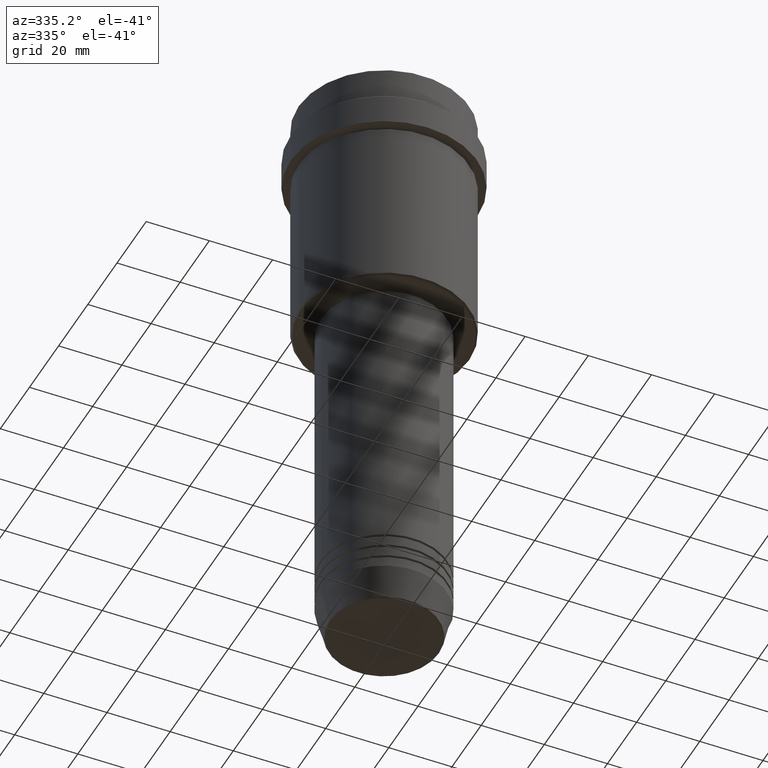
[diagram: clean part render]
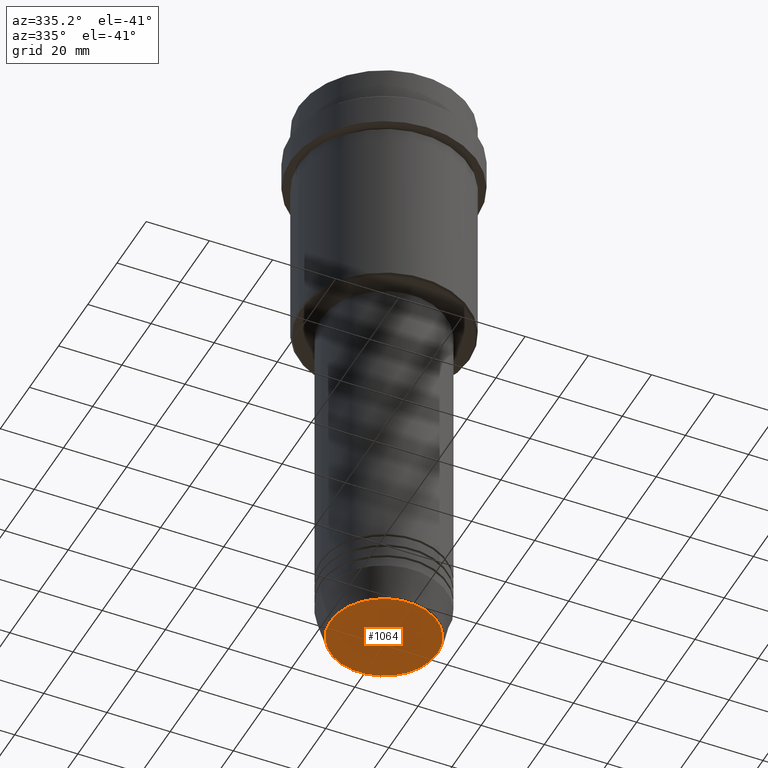
[diagram: same view with one face highlighted and labeled with its STEP entity id]
A machine part, auxiliary view. The second image highlights one B-rep face of the part: STEP entity #1064.
In plain terms, the highlighted planar face has unit normal (0, -0, 1).
Its self-contained STEP definition (entity closure, byte-faithful):
#29 = DIRECTION ( 'NONE',  ( 0.000000000000000000, 0.000000000000000000, -1.000000000000000000 ) ) ;
#42 = DIRECTION ( 'NONE',  ( 0.000000000000000000, -0.000000000000000000, 1.000000000000000000 ) ) ;
#108 = DIRECTION ( 'NONE',  ( 1.000000000000000000, 0.000000000000000000, 0.000000000000000000 ) ) ;
#224 = DIRECTION ( 'NONE',  ( 0.000000000000000000, 0.000000000000000000, -1.000000000000000000 ) ) ;
#306 = ORIENTED_EDGE ( 'NONE', *, *, #1238, .T. ) ;
#317 = CIRCLE ( 'NONE', #489, 16.93684458169928675 ) ;
#331 = ORIENTED_EDGE ( 'NONE', *, *, #952, .T. ) ;
#361 = AXIS2_PLACEMENT_3D ( 'NONE', #694, #42, #1362 ) ;
#369 = FACE_OUTER_BOUND ( 'NONE', #874, .T. ) ;
#478 = VERTEX_POINT ( 'NONE', #1034 ) ;
#489 = AXIS2_PLACEMENT_3D ( 'NONE', #1209, #224, #658 ) ;
#657 = CARTESIAN_POINT ( 'NONE',  ( 0.000000000000000000, 0.000000000000000000, -193.0000000000000000 ) ) ;
#658 = DIRECTION ( 'NONE',  ( 1.000000000000000000, 0.000000000000000000, 0.000000000000000000 ) ) ;
#694 = CARTESIAN_POINT ( 'NONE',  ( 0.000000000000000000, 0.000000000000000000, -193.0000000000000000 ) ) ;
#730 = CIRCLE ( 'NONE', #918, 16.93684458169928675 ) ;
#795 = CARTESIAN_POINT ( 'NONE',  ( 16.93684458169928675, 0.000000000000000000, -193.0000000000000000 ) ) ;
#806 = PLANE ( 'NONE',  #361 ) ;
#869 = VERTEX_POINT ( 'NONE', #795 ) ;
#874 = EDGE_LOOP ( 'NONE', ( #331, #306 ) ) ;
#918 = AXIS2_PLACEMENT_3D ( 'NONE', #657, #29, #108 ) ;
#952 = EDGE_CURVE ( 'NONE', #869, #478, #317, .T. ) ;
#1034 = CARTESIAN_POINT ( 'NONE',  ( -16.93684458169928675, 2.103738199747889592E-15, -193.0000000000000000 ) ) ;
#1064 = ADVANCED_FACE ( 'NONE', ( #369 ), #806, .F. ) ;
#1209 = CARTESIAN_POINT ( 'NONE',  ( 0.000000000000000000, 0.000000000000000000, -193.0000000000000000 ) ) ;
#1238 = EDGE_CURVE ( 'NONE', #478, #869, #730, .T. ) ;
#1362 = DIRECTION ( 'NONE',  ( 1.000000000000000000, 0.000000000000000000, 0.000000000000000000 ) ) ;